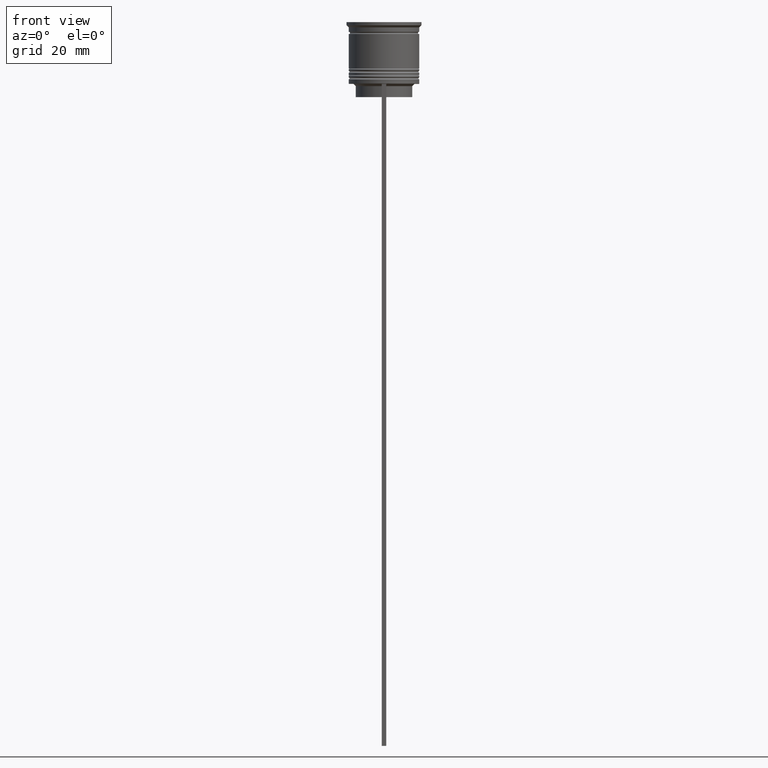
[diagram: clean part render]
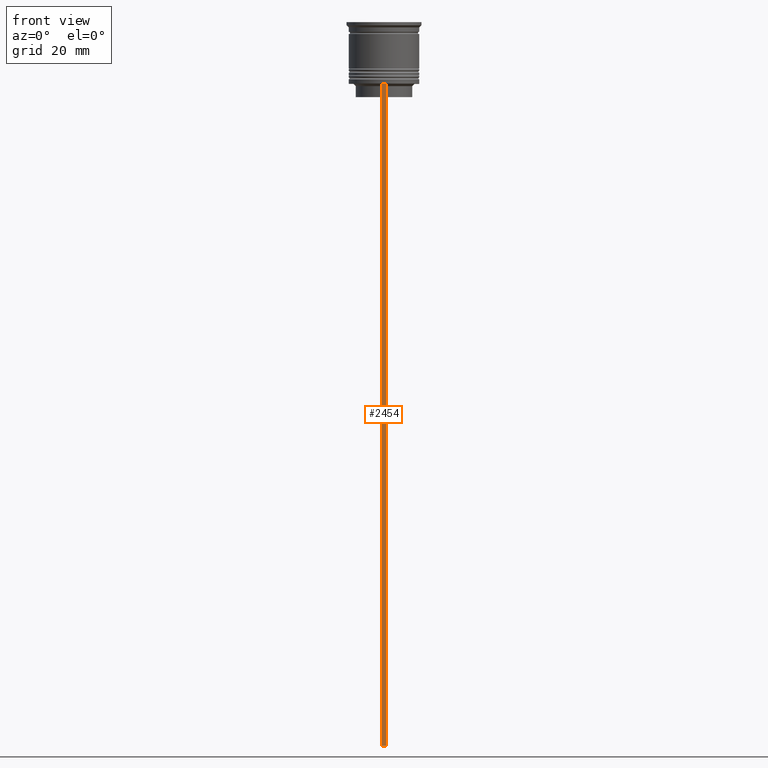
[diagram: same view with one face highlighted and labeled with its STEP entity id]
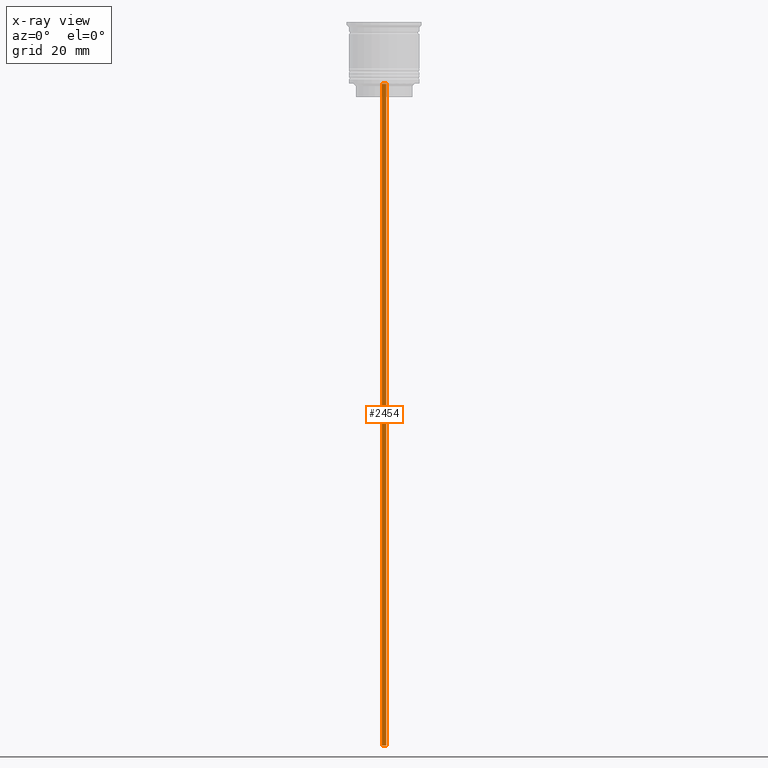
[diagram: x-ray of the same camera — body ghosted, the highlighted face saturated]
A machine part, front view. The second image highlights one B-rep face of the part: STEP entity #2454.
The next image is the same camera in x-ray: the body ghosted, the highlighted face saturated — about 0% of this face is hidden behind the body in this view.
In plain terms, the highlighted planar face has unit normal (0, -1, -0).
Its self-contained STEP definition (entity closure, byte-faithful):
#55 = ORIENTED_EDGE ( 'NONE', *, *, #2228, .F. ) ;
#135 = CARTESIAN_POINT ( 'NONE',  ( 0.5000000000000001110, -8.000000000000003553, -163.9999999999999716 ) ) ;
#256 = LINE ( 'NONE', #1825, #509 ) ;
#272 = EDGE_CURVE ( 'NONE', #833, #2013, #2142, .T. ) ;
#305 = DIRECTION ( 'NONE',  ( -1.000000000000000000, 0.000000000000000000, 0.000000000000000000 ) ) ;
#387 = EDGE_CURVE ( 'NONE', #833, #1634, #256, .T. ) ;
#397 = DIRECTION ( 'NONE',  ( 0.000000000000000000, -1.000000000000000000, -0.000000000000000000 ) ) ;
#509 = VECTOR ( 'NONE', #1026, 1000.000000000000000 ) ;
#548 = VECTOR ( 'NONE', #1922, 1000.000000000000000 ) ;
#703 = EDGE_CURVE ( 'NONE', #1634, #1824, #1344, .T. ) ;
#776 = DIRECTION ( 'NONE',  ( 0.000000000000000000, 0.000000000000000000, -1.000000000000000000 ) ) ;
#813 = VECTOR ( 'NONE', #305, 1000.000000000000000 ) ;
#833 = VERTEX_POINT ( 'NONE', #1057 ) ;
#954 = VECTOR ( 'NONE', #1930, 1000.000000000000000 ) ;
#961 = EDGE_LOOP ( 'NONE', ( #1441, #1745, #55, #1798 ) ) ;
#966 = FACE_OUTER_BOUND ( 'NONE', #961, .T. ) ;
#1026 = DIRECTION ( 'NONE',  ( 1.000000000000000000, 0.000000000000000000, 0.000000000000000000 ) ) ;
#1057 = CARTESIAN_POINT ( 'NONE',  ( -0.4999999999999998890, -8.000000000000003553, -14.00000000000000178 ) ) ;
#1075 = LINE ( 'NONE', #1880, #813 ) ;
#1110 = CARTESIAN_POINT ( 'NONE',  ( 0.5000000000000001110, -8.000000000000003553, 2.031219541881394530 ) ) ;
#1344 = LINE ( 'NONE', #2457, #954 ) ;
#1377 = AXIS2_PLACEMENT_3D ( 'NONE', #1110, #397, #776 ) ;
#1441 = ORIENTED_EDGE ( 'NONE', *, *, #387, .F. ) ;
#1634 = VERTEX_POINT ( 'NONE', #2015 ) ;
#1745 = ORIENTED_EDGE ( 'NONE', *, *, #272, .T. ) ;
#1747 = CARTESIAN_POINT ( 'NONE',  ( -0.4999999999999998890, -8.000000000000003553, 2.031219541881394530 ) ) ;
#1798 = ORIENTED_EDGE ( 'NONE', *, *, #703, .F. ) ;
#1824 = VERTEX_POINT ( 'NONE', #135 ) ;
#1825 = CARTESIAN_POINT ( 'NONE',  ( 0.5000000000000001110, -8.000000000000003553, -14.00000000000000178 ) ) ;
#1880 = CARTESIAN_POINT ( 'NONE',  ( 0.5000000000000001110, -8.000000000000003553, -163.9999999999999716 ) ) ;
#1922 = DIRECTION ( 'NONE',  ( 0.000000000000000000, 0.000000000000000000, -1.000000000000000000 ) ) ;
#1930 = DIRECTION ( 'NONE',  ( 0.000000000000000000, 0.000000000000000000, -1.000000000000000000 ) ) ;
#2013 = VERTEX_POINT ( 'NONE', #2279 ) ;
#2015 = CARTESIAN_POINT ( 'NONE',  ( 0.5000000000000001110, -8.000000000000003553, -14.00000000000000178 ) ) ;
#2142 = LINE ( 'NONE', #1747, #548 ) ;
#2228 = EDGE_CURVE ( 'NONE', #1824, #2013, #1075, .T. ) ;
#2279 = CARTESIAN_POINT ( 'NONE',  ( -0.4999999999999998890, -8.000000000000003553, -163.9999999999999716 ) ) ;
#2292 = PLANE ( 'NONE',  #1377 ) ;
#2454 = ADVANCED_FACE ( 'NONE', ( #966 ), #2292, .T. ) ;
#2457 = CARTESIAN_POINT ( 'NONE',  ( 0.5000000000000001110, -8.000000000000003553, 2.031219541881394530 ) ) ;